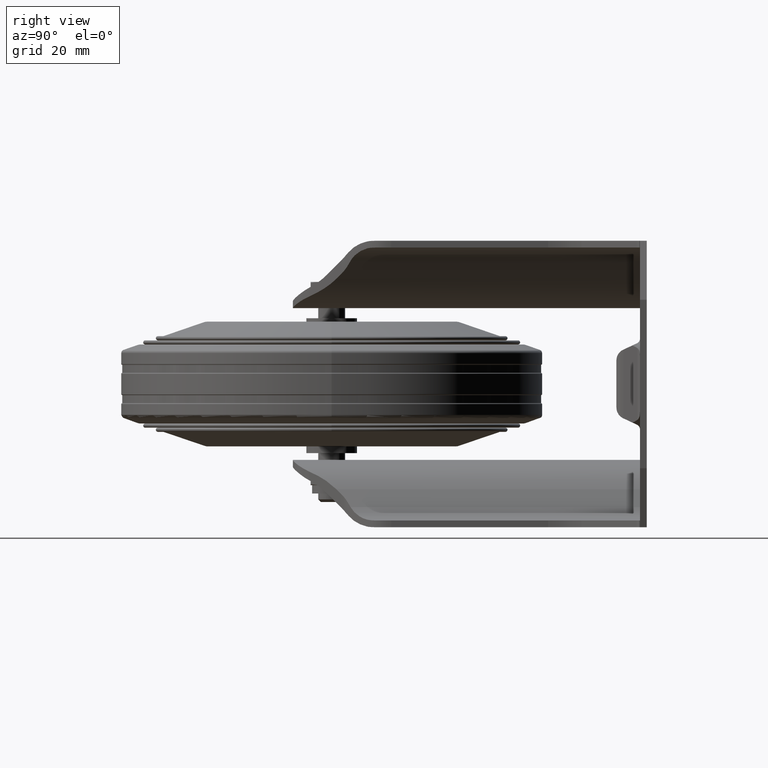
[diagram: clean part render]
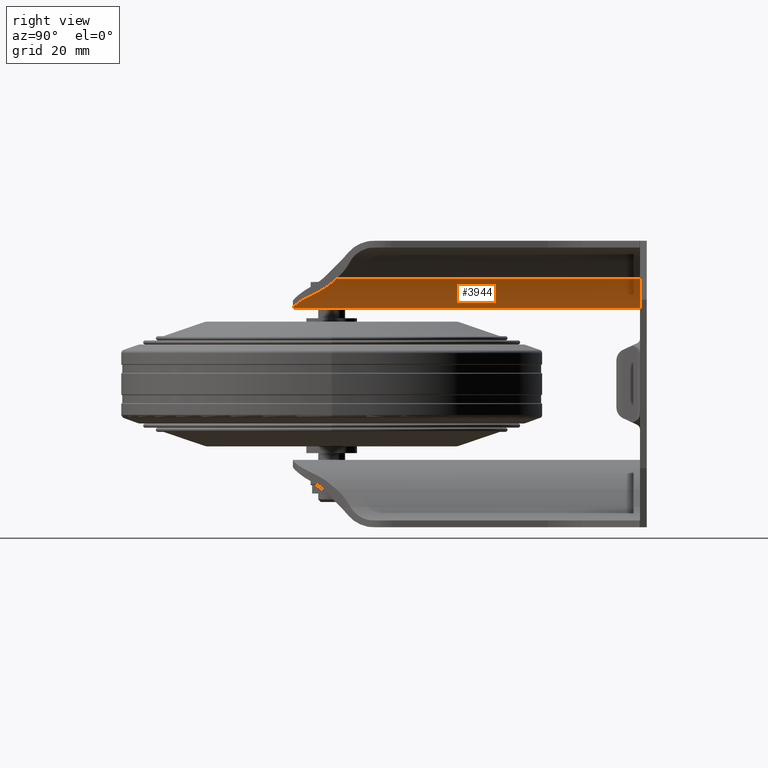
[diagram: same view with one face highlighted and labeled with its STEP entity id]
A machine part, right view. The second image highlights one B-rep face of the part: STEP entity #3944.
In plain terms, the highlighted cylindrical surface (partial cylindrical patch) has radius 17.5 mm, axis along (0, 1, 0).
Its self-contained STEP definition (entity closure, byte-faithful):
#71=ELLIPSE('',#4390,35.,17.5);
#104=B_SPLINE_CURVE_WITH_KNOTS('',3,(#6744,#6745,#6746,#6747,#6748,#6749,
#6750,#6751),.UNSPECIFIED.,.F.,.F.,(4,2,2,4),(-4.70143301009309,-4.30089444588797,
-3.90035588168284,-3.63558704858731),.UNSPECIFIED.);
#401=LINE('',#6738,#668);
#403=LINE('',#6755,#670);
#668=VECTOR('',#5154,1000.);
#670=VECTOR('',#5162,1000.);
#856=CYLINDRICAL_SURFACE('',#4389,17.5);
#998=FACE_OUTER_BOUND('',#1250,.T.);
#1250=EDGE_LOOP('',(#3032,#3033,#3034,#3035,#3036,#3037));
#1501=CIRCLE('',#4391,17.5);
#1502=CIRCLE('',#4392,17.5);
#1881=VERTEX_POINT('',#6735);
#1882=VERTEX_POINT('',#6737);
#1883=VERTEX_POINT('',#6741);
#1884=VERTEX_POINT('',#6743);
#1885=VERTEX_POINT('',#6752);
#1886=VERTEX_POINT('',#6754);
#2316=EDGE_CURVE('',#1881,#1882,#401,.T.);
#2318=EDGE_CURVE('',#1881,#1883,#71,.F.);
#2319=EDGE_CURVE('',#1884,#1883,#104,.T.);
#2320=EDGE_CURVE('',#1884,#1885,#1501,.F.);
#2321=EDGE_CURVE('',#1885,#1886,#403,.T.);
#2322=EDGE_CURVE('',#1882,#1886,#1502,.T.);
#3032=ORIENTED_EDGE('',*,*,#2316,.F.);
#3033=ORIENTED_EDGE('',*,*,#2318,.T.);
#3034=ORIENTED_EDGE('',*,*,#2319,.F.);
#3035=ORIENTED_EDGE('',*,*,#2320,.T.);
#3036=ORIENTED_EDGE('',*,*,#2321,.T.);
#3037=ORIENTED_EDGE('',*,*,#2322,.F.);
#3944=ADVANCED_FACE('',(#998),#856,.T.);
#4389=AXIS2_PLACEMENT_3D('',#6740,#5156,#5157);
#4390=AXIS2_PLACEMENT_3D('',#6742,#5158,#5159);
#4391=AXIS2_PLACEMENT_3D('',#6753,#5160,#5161);
#4392=AXIS2_PLACEMENT_3D('',#6756,#5163,#5164);
#5154=DIRECTION('',(0.,1.,0.));
#5156=DIRECTION('center_axis',(0.,1.,0.));
#5157=DIRECTION('ref_axis',(0.,0.,1.));
#5158=DIRECTION('center_axis',(0.866025403784438,-0.5,0.));
#5159=DIRECTION('ref_axis',(0.5,0.866025403784438,0.));
#5160=DIRECTION('center_axis',(0.,-1.,0.));
#5161=DIRECTION('ref_axis',(0.,0.,-1.));
#5162=DIRECTION('',(0.,1.,0.));
#5163=DIRECTION('center_axis',(0.,1.,0.));
#5164=DIRECTION('ref_axis',(0.,0.,1.));
#6735=CARTESIAN_POINT('',(21.4565153937885,1.41506350946109,31.25));
#6737=CARTESIAN_POINT('',(21.4565153937885,91.5,31.25));
#6738=CARTESIAN_POINT('',(21.4565153937885,-62.5,31.25));
#6740=CARTESIAN_POINT('Origin',(6.3010708275608,-62.5,40.));
#6741=CARTESIAN_POINT('',(16.8867513459481,-6.5,26.0646719463575));
#6742=CARTESIAN_POINT('Origin',(6.3010708275608,-24.8349364905389,40.));
#6743=CARTESIAN_POINT('',(8.22649730810373,-11.5,22.6062444288755));
#6744=CARTESIAN_POINT('Ctrl Pts',(8.22649730810374,-11.5,22.6062444288755));
#6745=CARTESIAN_POINT('Ctrl Pts',(9.55352014288339,-11.5,22.7531411065896));
#6746=CARTESIAN_POINT('Ctrl Pts',(10.926941766473,-11.2216642553053,23.0716874317324));
#6747=CARTESIAN_POINT('Ctrl Pts',(13.3959159043287,-10.1648866855846,23.9491552703652));
#6748=CARTESIAN_POINT('Ctrl Pts',(14.4939899417438,-9.38856631159816,24.5035278291256));
#6749=CARTESIAN_POINT('Ctrl Pts',(15.9257065831251,-7.93291559351744,25.3692201854369));
#6750=CARTESIAN_POINT('Ctrl Pts',(16.4518496573189,-7.25327182100326,25.7343079739405));
#6751=CARTESIAN_POINT('Ctrl Pts',(16.8867513459481,-6.50000000000001,26.0646719463575));
#6752=CARTESIAN_POINT('',(6.3010708275608,-11.5,22.5));
#6753=CARTESIAN_POINT('Origin',(6.3010708275608,-11.5,40.));
#6754=CARTESIAN_POINT('',(6.3010708275608,91.5,22.5));
#6755=CARTESIAN_POINT('',(6.3010708275608,-62.5,22.5));
#6756=CARTESIAN_POINT('Origin',(6.3010708275608,91.5,40.));